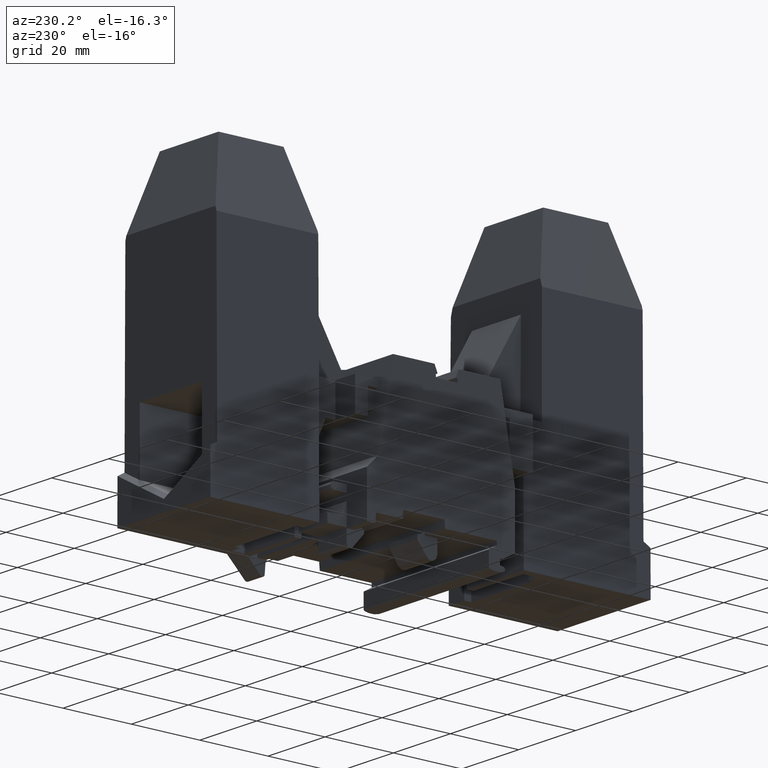
[diagram: clean part render]
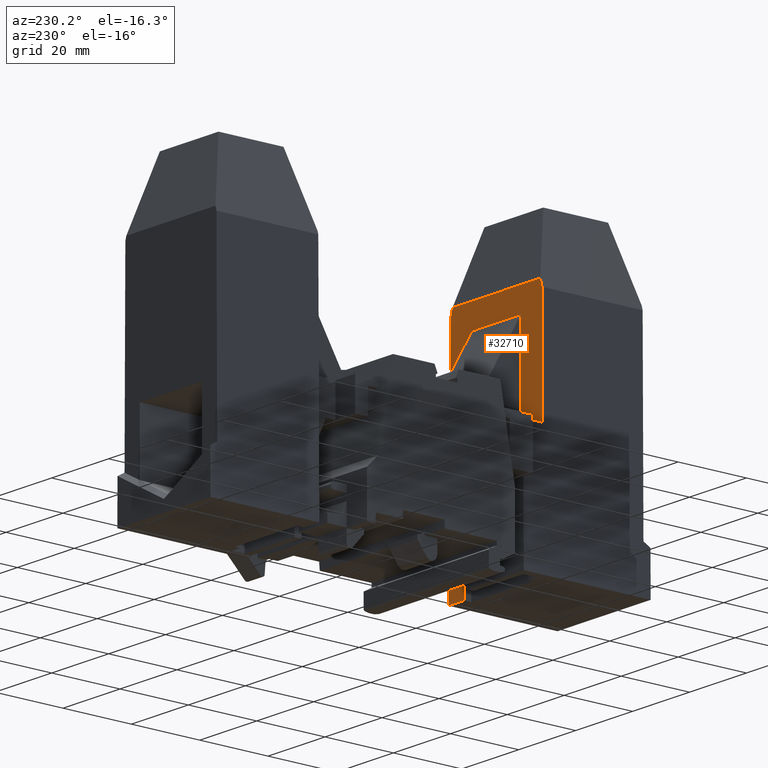
[diagram: same view with one face highlighted and labeled with its STEP entity id]
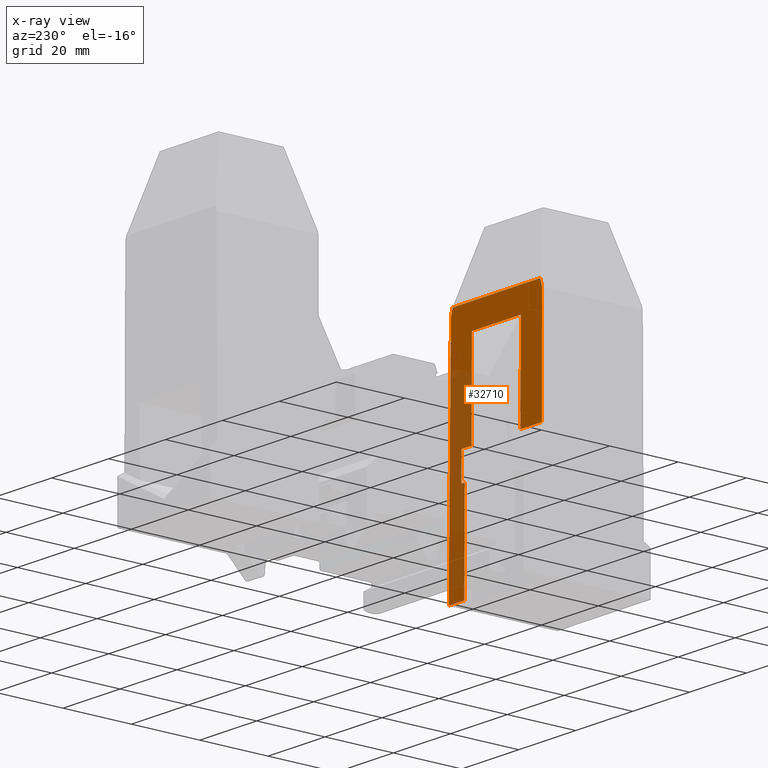
[diagram: x-ray of the same camera — body ghosted, the highlighted face saturated]
A machine part, auxiliary view. The second image highlights one B-rep face of the part: STEP entity #32710.
The next image is the same camera in x-ray: the body ghosted, the highlighted face saturated — about 37% of this face is hidden behind the body in this view.
In plain terms, the highlighted face is a freeform B-spline surface patch.
Its self-contained STEP definition (entity closure, byte-faithful):
#12900=CARTESIAN_POINT('',(-115.298364987051,435.038955563671,
12.3810540204136));
#12910=DIRECTION('',(6.7169021754704E-17,1.,1.20370621524202E-35));
#12920=DIRECTION('',(1.,-6.7169021754704E-17,-8.25143738856741E-40));
#12930=AXIS2_PLACEMENT_3D('',#12900,#12910,#12920);
#12940=PLANE('',#12930);
#13310=CARTESIAN_POINT('',(-115.245564319149,435.038955563669,
-10.0689459795862));
#13320=VERTEX_POINT('',#13310);
#13350=CARTESIAN_POINT('',(-104.793064126343,2484.3128477958,
712.876324217447));
#13360=CARTESIAN_POINT('',(-112.084978014362,1091.67260675453,
-709.459879524685));
#13370=CARTESIAN_POINT('',(-125.599481714809,-1594.90720913272,
1804.94025607115));
#13380=CARTESIAN_POINT('',(-118.376343396556,-215.402014325989,
-1800.23857394296));
#13390=B_SPLINE_SURFACE_WITH_KNOTS('',1,1,((#13350,#13370),(#13360,
#13380)),.UNSPECIFIED.,.F.,.F.,.F.,(2,2),(2,2),(-39.7771442341803,
40.7771442341803),(-105.024768864429,106.024768864429),.UNSPECIFIED.);
#13400=CARTESIAN_POINT('',(-115.245564319071,435.03895556367,
-6.56894642371046));
#13410=CARTESIAN_POINT('',(-115.245564319077,435.03895556367,
-6.86061305336696));
#13420=CARTESIAN_POINT('',(-115.245564319084,435.038955563671,
-7.15227968302292));
#13430=CARTESIAN_POINT('',(-115.24556431909,435.038955563671,
-7.44394631267929));
#13440=CARTESIAN_POINT('',(-115.245564319097,435.038955563671,
-7.73561294233533));
#13450=CARTESIAN_POINT('',(-115.245564319103,435.03895556367,
-8.02727957199235));
#13460=CARTESIAN_POINT('',(-115.24556431911,435.03895556367,
-8.31894620164825));
#13470=CARTESIAN_POINT('',(-115.245564319116,435.03895556367,
-8.61061283130387));
#13480=CARTESIAN_POINT('',(-115.245564319123,435.038955563671,
-8.90227946096153));
#13490=CARTESIAN_POINT('',(-115.245564319129,435.038955563671,
-9.19394609061703));
#13500=CARTESIAN_POINT('',(-115.245564319136,435.038955563671,
-9.48561272027343));
#13510=CARTESIAN_POINT('',(-115.245564319143,435.038955563671,
-9.77727934992984));
#13520=CARTESIAN_POINT('',(-115.245564319149,435.038955563671,
-10.068945979586));
#13530=B_SPLINE_CURVE_WITH_KNOTS('',3,(#13400,#13410,#13420,#13430,
#13440,#13450,#13460,#13470,#13480,#13490,#13500,#13510,#13520),
.UNSPECIFIED.,.F.,.F.,(4,3,3,3,4),(0.,0.874999888968837,1.74999977793779
,2.62499966690657,3.49999955587552),.UNSPECIFIED.);
#13540=SURFACE_CURVE('',#13530,(#13390,#12940),.CURVE_3D.);
#13550=CARTESIAN_POINT('',(-115.245564319071,435.03895556367,
-6.56894642371046));
#13560=VERTEX_POINT('',#13550);
#13570=EDGE_CURVE('',#13560,#13320,#13540,.T.);
#13760=CARTESIAN_POINT('',(-120.698364987051,433.038955563671,
-10.0689459795864));
#13770=DIRECTION('',(-8.25143738855932E-40,1.20370621524202E-35,-1.));
#13780=DIRECTION('',(-1.,6.7169021754704E-17,8.25143738856741E-40));
#13790=AXIS2_PLACEMENT_3D('',#13760,#13770,#13780);
#13800=PLANE('',#13790);
#14090=CARTESIAN_POINT('',(-115.286306181023,426.93895556367,
-10.0689459795404));
#14100=VERTEX_POINT('',#14090);
#14130=CARTESIAN_POINT('',(-115.286306181023,426.93895556367,
-10.0689459795864));
#14140=CARTESIAN_POINT('',(-115.282911024176,427.613955563662,
-10.0689459795864));
#14150=CARTESIAN_POINT('',(-115.27951586775,428.288955563655,
-10.0689459795864));
#14160=CARTESIAN_POINT('',(-115.276120711747,428.963955563651,
-10.0689459795864));
#14170=CARTESIAN_POINT('',(-115.272725555743,429.638955563647,
-10.0689459795864));
#14180=CARTESIAN_POINT('',(-115.269330400163,430.313955563644,
-10.0689459795864));
#14190=CARTESIAN_POINT('',(-115.265935245005,430.988955563645,
-10.0689459795864));
#14200=CARTESIAN_POINT('',(-115.262540089848,431.663955563644,
-10.0689459795864));
#14210=CARTESIAN_POINT('',(-115.259144935114,432.338955563647,
-10.0689459795864));
#14220=CARTESIAN_POINT('',(-115.255749780805,433.013955563651,
-10.0689459795864));
#14230=CARTESIAN_POINT('',(-115.252354626495,433.688955563655,
-10.0689459795864));
#14240=CARTESIAN_POINT('',(-115.248959472609,434.363955563661,
-10.0689459795863));
#14250=CARTESIAN_POINT('',(-115.245564319149,435.03895556367,
-10.0689459795863));
#14260=B_SPLINE_CURVE_WITH_KNOTS('',3,(#14130,#14140,#14150,#14160,
#14170,#14180,#14190,#14200,#14210,#14220,#14230,#14240,#14250),
.UNSPECIFIED.,.F.,.F.,(4,3,3,3,4),(0.,2.02502561556787,4.05005123113577,
6.07507684670357,8.10010246227148),.UNSPECIFIED.);
#14270=SURFACE_CURVE('',#14260,(#13800,#13390),.CURVE_3D.);
#14280=EDGE_CURVE('',#14100,#13320,#14270,.T.);
#14970=CARTESIAN_POINT('',(-203.945243361762,399.276938378274,
-12.7768886267056));
#14980=DIRECTION('',(1.16578705234462E-17,-1.,1.16578705234462E-17));
#14990=DIRECTION('',(-1.,-1.16578705234462E-17,-1.20370621524202E-35));
#15000=AXIS2_PLACEMENT_3D('',#14970,#14980,#14990);
#15010=PLANE('',#15000);
#15160=CARTESIAN_POINT('',(-115.425429708724,399.276938378274,
-14.350146805803));
#15170=VERTEX_POINT('',#15160);
#15200=CARTESIAN_POINT('',(-115.425429708724,399.276938378274,
-14.3501468058029));
#15210=CARTESIAN_POINT('',(-115.425431074235,399.276938378274,
-13.8954634036184));
#15220=CARTESIAN_POINT('',(-115.425432438997,399.276938378274,
-13.4407800014333));
#15230=CARTESIAN_POINT('',(-115.425433803012,399.276938378274,
-12.9860965992488));
#15240=CARTESIAN_POINT('',(-115.425435167027,399.276938378274,
-12.5314131970642));
#15250=CARTESIAN_POINT('',(-115.425436530294,399.276938378274,
-12.0767297948793));
#15260=CARTESIAN_POINT('',(-115.425437892816,399.276938378274,
-11.6220463926946));
#15270=CARTESIAN_POINT('',(-115.425439255337,399.276938378274,
-11.1673629905101));
#15280=CARTESIAN_POINT('',(-115.425440617112,399.276938378274,
-10.7126795883253));
#15290=CARTESIAN_POINT('',(-115.425441978142,399.276938378274,
-10.2579961861407));
#15300=CARTESIAN_POINT('',(-115.425442658657,399.276938378274,
-10.030654485048));
#15310=CARTESIAN_POINT('',(-115.425443338986,399.276938378274,
-9.80331278395606));
#15320=CARTESIAN_POINT('',(-115.425444019128,399.276938378274,
-9.57597108286365));
#15330=CARTESIAN_POINT('',(-115.425444699271,399.276938378274,
-9.34862938177106));
#15340=CARTESIAN_POINT('',(-115.425445379227,399.276938378274,
-9.12128768067899));
#15350=CARTESIAN_POINT('',(-115.425446058998,399.276938378274,
-8.89394597958653));
#15360=B_SPLINE_CURVE_WITH_KNOTS('',3,(#15200,#15210,#15220,#15230,
#15240,#15250,#15260,#15270,#15280,#15290,#15300,#15310,#15320,#15330,
#15340,#15350),.UNSPECIFIED.,.F.,.F.,(4,3,3,3,3,4),(0.,1.36405020656023,
2.72810041312057,4.09215061968056,4.77417572296067,5.45620082624083),
.UNSPECIFIED.);
#15370=SURFACE_CURVE('',#15360,(#15010,#13390),.CURVE_3D.);
#15380=CARTESIAN_POINT('',(-115.425446058998,399.276938378274,
-8.89394597958638));
#15390=VERTEX_POINT('',#15380);
#15400=EDGE_CURVE('',#15170,#15390,#15370,.T.);
#16440=CARTESIAN_POINT('',(-87.5983649870505,405.288955563671,
-8.89394597958638));
#16450=DIRECTION('',(8.25143738855932E-40,-1.20370621524202E-35,1.));
#16460=DIRECTION('',(6.7169021754704E-17,1.,1.20370621524202E-35));
#16470=AXIS2_PLACEMENT_3D('',#16440,#16450,#16460);
#16480=PLANE('',#16470);
#16660=CARTESIAN_POINT('',(-115.286306984336,426.93895556367,
-8.8939459795864));
#16670=CARTESIAN_POINT('',(-115.297901889768,424.633787464799,
-8.8939459795864));
#16680=CARTESIAN_POINT('',(-115.309496799603,422.328619365951,
-8.89394597958634));
#16690=CARTESIAN_POINT('',(-115.321091713813,420.023451267124,
-8.89394597958634));
#16700=CARTESIAN_POINT('',(-115.332686628022,417.718283168297,
-8.89394597958634));
#16710=CARTESIAN_POINT('',(-115.344281546605,415.413115069493,
-8.8939459795864));
#16720=CARTESIAN_POINT('',(-115.355876469532,413.10794697071,
-8.8939459795864));
#16730=CARTESIAN_POINT('',(-115.36747139246,410.802778871927,
-8.8939459795864));
#16740=CARTESIAN_POINT('',(-115.379066319731,408.497610773166,
-8.89394597958634));
#16750=CARTESIAN_POINT('',(-115.390661251319,406.192442674427,
-8.89394597958634));
#16760=CARTESIAN_POINT('',(-115.396458717112,405.039858625057,
-8.89394597958634));
#16770=CARTESIAN_POINT('',(-115.402256183985,403.887274575693,
-8.8939459795864));
#16780=CARTESIAN_POINT('',(-115.408053651933,402.734690526334,
-8.8939459795864));
#16790=CARTESIAN_POINT('',(-115.41385111988,401.582106476975,
-8.8939459795864));
#16800=CARTESIAN_POINT('',(-115.419648588903,400.429522427622,
-8.89394597958646));
#16810=CARTESIAN_POINT('',(-115.425446058998,399.276938378274,
-8.89394597958646));
#16820=B_SPLINE_CURVE_WITH_KNOTS('',3,(#16660,#16670,#16680,#16690,
#16700,#16710,#16720,#16730,#16740,#16750,#16760,#16770,#16780,#16790,
#16800,#16810),.UNSPECIFIED.,.F.,.F.,(4,3,3,3,3,4),(0.,6.91559177894087,
13.8311835578819,20.7467753368227,24.204571226293,27.6623671157636),
.UNSPECIFIED.);
#16830=SURFACE_CURVE('',#16820,(#13390,#16480),.CURVE_3D.);
#16840=CARTESIAN_POINT('',(-115.286306984336,426.938955563671,
-8.89394597958638));
#16850=VERTEX_POINT('',#16840);
#16860=EDGE_CURVE('',#16850,#15390,#16830,.T.);
#24410=CARTESIAN_POINT('',(-118.698364987051,426.938955563671,
-10.0689459795864));
#24420=DIRECTION('',(-6.7169021754704E-17,-1.,-1.20370621524202E-35));
#24430=DIRECTION('',(8.25143738855932E-40,-1.20370621524202E-35,1.));
#24440=AXIS2_PLACEMENT_3D('',#24410,#24420,#24430);
#24450=PLANE('',#24440);
#24490=CARTESIAN_POINT('',(-115.286306984336,426.938955563671,
-8.89394597957255));
#24500=CARTESIAN_POINT('',(-115.286306917425,426.938955563671,
-8.9918626462374));
#24510=CARTESIAN_POINT('',(-115.286306850507,426.938955563671,
-9.08977931290168));
#24520=CARTESIAN_POINT('',(-115.28630678358,426.938955563671,
-9.1876959795669));
#24530=CARTESIAN_POINT('',(-115.286306716653,426.938955563671,
-9.2856126462312));
#24540=CARTESIAN_POINT('',(-115.286306649719,426.93895556367,
-9.38352931289654));
#24550=CARTESIAN_POINT('',(-115.286306582776,426.93895556367,
-9.48144597956079));
#24560=CARTESIAN_POINT('',(-115.286306515833,426.93895556367,
-9.57936264622584));
#24570=CARTESIAN_POINT('',(-115.286306448882,426.93895556367,
-9.67727931289056));
#24580=CARTESIAN_POINT('',(-115.286306381924,426.93895556367,
-9.77519597955525));
#24590=CARTESIAN_POINT('',(-115.286306314965,426.93895556367,
-9.87311264622011));
#24600=CARTESIAN_POINT('',(-115.286306247998,426.93895556367,
-9.97102931288464));
#24610=CARTESIAN_POINT('',(-115.286306181023,426.93895556367,
-10.0689459795494));
#24620=B_SPLINE_CURVE_WITH_KNOTS('',3,(#24490,#24500,#24510,#24520,
#24530,#24540,#24550,#24560,#24570,#24580,#24590,#24600,#24610),
.UNSPECIFIED.,.F.,.F.,(4,3,3,3,4),(0.,0.293749999994416,
0.587499999988376,0.881249999982906,1.17499999997715),.UNSPECIFIED.);
#24630=SURFACE_CURVE('',#24620,(#24450,#13390),.CURVE_3D.);
#24640=EDGE_CURVE('',#16850,#14100,#24630,.T.);
#30190=CARTESIAN_POINT('',(-118.649658255379,449.966558136016,
-6.56894642371042));
#30200=DIRECTION('',(8.25143738855932E-40,-1.20370621524202E-35,1.));
#30210=DIRECTION('',(1.,-6.7169021754704E-17,-8.25143738856741E-40));
#30220=AXIS2_PLACEMENT_3D('',#30190,#30200,#30210);
#30230=PLANE('',#30220);
#30250=CARTESIAN_POINT('',(-115.110273216917,461.935008451775,
-6.56894642371045));
#30260=CARTESIAN_POINT('',(-115.121547462287,459.693670711033,
-6.56894642371045));
#30270=CARTESIAN_POINT('',(-115.132821710971,457.452332970308,
-6.5689464237104));
#30280=CARTESIAN_POINT('',(-115.144095962948,455.2109952296,
-6.5689464237104));
#30290=CARTESIAN_POINT('',(-115.155370214925,452.969657488892,
-6.5689464237104));
#30300=CARTESIAN_POINT('',(-115.166644470195,450.7283197482,
-6.56894642371051));
#30310=CARTESIAN_POINT('',(-115.177918728736,448.486982007525,
-6.56894642371051));
#30320=CARTESIAN_POINT('',(-115.189192987278,446.24564426685,
-6.56894642371051));
#30330=CARTESIAN_POINT('',(-115.200467249091,444.004306526191,
-6.56894642371028));
#30340=CARTESIAN_POINT('',(-115.211741514154,441.762968785549,
-6.56894642371028));
#30350=CARTESIAN_POINT('',(-115.223015779216,439.521631044906,
-6.56894642371028));
#30360=CARTESIAN_POINT('',(-115.234290047529,437.280293304281,
-6.5689464237104));
#30370=CARTESIAN_POINT('',(-115.245564319071,435.038955563671,
-6.5689464237104));
#30380=B_SPLINE_CURVE_WITH_KNOTS('',3,(#30250,#30260,#30270,#30280,
#30290,#30300,#30310,#30320,#30330,#30340,#30350,#30360,#30370),
.UNSPECIFIED.,.F.,.F.,(4,3,3,3,4),(0.,6.72409828825589,13.4481965765117,
20.1722948647677,26.8963931530235),.UNSPECIFIED.);
#30390=SURFACE_CURVE('',#30380,(#13390,#30230),.CURVE_3D.);
#30400=CARTESIAN_POINT('',(-115.110273216917,461.93500845177,
-6.56894642370659));
#30410=VERTEX_POINT('',#30400);
#30420=EDGE_CURVE('',#30410,#13560,#30390,.T.);
#30690=CARTESIAN_POINT('',(-178.923092165796,412.466705279512,
18.2796089269697));
#30700=DIRECTION('',(6.1040188412137E-20,-0.00523596383141961,
-0.999986292247427));
#30710=DIRECTION('',(-1.,-1.16578705234462E-17,-1.20370621524202E-35));
#30720=AXIS2_PLACEMENT_3D('',#30690,#30700,#30710);
#30730=PLANE('',#30720);
#30740=CARTESIAN_POINT('',(-115.085737176134,466.799715768666,
17.9951193494835));
#30750=CARTESIAN_POINT('',(-115.099056105783,464.152985751589,
18.0089777220916));
#30760=CARTESIAN_POINT('',(-115.11237503515,461.50625573451,
18.0228360946998));
#30770=CARTESIAN_POINT('',(-115.125693964237,458.85952571743,
18.0366944673079));
#30780=CARTESIAN_POINT('',(-115.139012893324,456.212795700349,
18.050552839916));
#30790=CARTESIAN_POINT('',(-115.152331822131,453.566065683268,
18.0644112125241));
#30800=CARTESIAN_POINT('',(-115.16565075066,450.919335666185,
18.0782695851322));
#30810=CARTESIAN_POINT('',(-115.17896967919,448.272605649102,
18.0921279577403));
#30820=CARTESIAN_POINT('',(-115.192288607442,445.625875632017,
18.1059863303485));
#30830=CARTESIAN_POINT('',(-115.205607535418,442.979145614932,
18.1198447029566));
#30840=CARTESIAN_POINT('',(-115.218926463394,440.332415597846,
18.1337030755647));
#30850=CARTESIAN_POINT('',(-115.232245391095,437.685685580759,
18.1475614481729));
#30860=CARTESIAN_POINT('',(-115.245564318522,435.038955563671,
18.161419820781));
#30870=B_SPLINE_CURVE_WITH_KNOTS('',3,(#30740,#30750,#30760,#30770,
#30780,#30790,#30800,#30810,#30820,#30830,#30840,#30850,#30860),
.UNSPECIFIED.,.F.,.F.,(4,3,3,3,4),(0.,7.94039942856074,15.8807988571217,
23.8211982856823,31.7615977142432),.UNSPECIFIED.);
#30880=SURFACE_CURVE('',#30870,(#30730,#13390),.CURVE_3D.);
#30890=CARTESIAN_POINT('',(-115.085737176134,466.799715768666,
17.9951193494836));
#30900=VERTEX_POINT('',#30890);
#30910=CARTESIAN_POINT('',(-115.245564318522,435.038955563671,
18.161419820781));
#30920=VERTEX_POINT('',#30910);
#30930=EDGE_CURVE('',#30900,#30920,#30880,.T.);
#30940=ORIENTED_EDGE('',*,*,#30930,.F.);
#30950=CARTESIAN_POINT('',(-115.245564318522,435.038955563671,
18.1614198207763));
#30960=CARTESIAN_POINT('',(-115.245564318529,435.038955563671,
17.8476545605985));
#30970=CARTESIAN_POINT('',(-115.245564318535,435.03895556367,
17.533889300405));
#30980=CARTESIAN_POINT('',(-115.245564318542,435.03895556367,
17.2201240402197));
#30990=CARTESIAN_POINT('',(-115.245564318549,435.03895556367,
16.9063587800322));
#31000=CARTESIAN_POINT('',(-115.245564318556,435.038955563671,
16.5925935198455));
#31010=CARTESIAN_POINT('',(-115.245564318563,435.038955563671,
16.2788282596582));
#31020=CARTESIAN_POINT('',(-115.245564318577,435.038955563671,
15.6512977392838));
#31030=CARTESIAN_POINT('',(-115.245564318591,435.038955563671,
15.02376721891));
#31040=CARTESIAN_POINT('',(-115.245564318604,435.038955563671,
14.3962366985352));
#31050=CARTESIAN_POINT('',(-115.245564318618,435.038955563671,
13.7687061781609));
#31060=CARTESIAN_POINT('',(-115.245564318632,435.038955563671,
13.1411756577872));
#31070=CARTESIAN_POINT('',(-115.245564318646,435.038955563671,
12.5136451374124));
#31080=CARTESIAN_POINT('',(-115.245564318653,435.038955563671,
12.1998798772253));
#31090=CARTESIAN_POINT('',(-115.24556431866,435.03895556367,
11.886114617038));
#31100=CARTESIAN_POINT('',(-115.245564318667,435.03895556367,
11.5723493568509));
#31110=CARTESIAN_POINT('',(-115.245564318674,435.03895556367,
11.258584096664));
#31120=CARTESIAN_POINT('',(-115.245564318681,435.038955563671,
10.9448188364768));
#31130=CARTESIAN_POINT('',(-115.245564318688,435.038955563671,
10.6310535762897));
#31140=B_SPLINE_CURVE_WITH_KNOTS('',3,(#30950,#30960,#30970,#30980,
#30990,#31000,#31010,#31020,#31030,#31040,#31050,#31060,#31070,#31080,
#31090,#31100,#31110,#31120,#31130),.UNSPECIFIED.,.F.,.F.,(4,3,3,3,3,3,4
),(0.,0.941295780556583,1.88259156111806,3.76518312224106,
5.64777468336384,6.58907046392532,7.53036624448657),.UNSPECIFIED.);
#31150=SURFACE_CURVE('',#31140,(#13390,#12940),.CURVE_3D.);
#31160=CARTESIAN_POINT('',(-115.245564318688,435.038955563671,
10.6310535762897));
#31170=VERTEX_POINT('',#31160);
#31180=EDGE_CURVE('',#30920,#31170,#31150,.T.);
#31190=ORIENTED_EDGE('',*,*,#31180,.F.);
#31200=CARTESIAN_POINT('',(-379.379250092403,187.522345280942,
10.6310535762896));
#31210=DIRECTION('',(8.25143738855932E-40,-1.20370621524202E-35,1.));
#31220=DIRECTION('',(1.,-6.7169021754704E-17,-8.25143738856741E-40));
#31230=AXIS2_PLACEMENT_3D('',#31200,#31210,#31220);
#31240=PLANE('',#31230);
#31250=CARTESIAN_POINT('',(-115.110233750223,461.935076810192,
10.6310535762897));
#31260=CARTESIAN_POINT('',(-115.121511312888,459.693733373059,
10.6310535762897));
#31270=CARTESIAN_POINT('',(-115.132788871696,457.452389935905,
10.6310535762895));
#31280=CARTESIAN_POINT('',(-115.144066426673,455.211046498734,
10.6310535762895));
#31290=CARTESIAN_POINT('',(-115.155343981651,452.969703061562,
10.6310535762895));
#31300=CARTESIAN_POINT('',(-115.166621532797,450.728359624372,
10.6310535762896));
#31310=CARTESIAN_POINT('',(-115.177899080136,448.487016187161,
10.6310535762896));
#31320=CARTESIAN_POINT('',(-115.189176627475,446.245672749951,
10.6310535762896));
#31330=CARTESIAN_POINT('',(-115.200454171008,444.004329312721,
10.6310535762896));
#31340=CARTESIAN_POINT('',(-115.211731710758,441.762985875472,
10.6310535762896));
#31350=CARTESIAN_POINT('',(-115.217370480634,440.642314156848,
10.6310535762896));
#31360=CARTESIAN_POINT('',(-115.223009249563,439.52164243822,
10.6310535762894));
#31370=CARTESIAN_POINT('',(-115.228648017551,438.400970719586,
10.6310535762894));
#31380=CARTESIAN_POINT('',(-115.234286785538,437.280299000952,
10.6310535762894));
#31390=CARTESIAN_POINT('',(-115.239925552582,436.159627282313,
10.6310535762896));
#31400=CARTESIAN_POINT('',(-115.245564318688,435.03895556367,
10.6310535762896));
#31410=B_SPLINE_CURVE_WITH_KNOTS('',3,(#31250,#31260,#31270,#31280,
#31290,#31300,#31310,#31320,#31330,#31340,#31350,#31360,#31370,#31380,
#31390,#31400),.UNSPECIFIED.,.F.,.F.,(4,3,3,3,3,4),(0.,6.72411542728082,
13.4482308545616,20.1723462818426,23.5344039954827,26.8964617091231),
.UNSPECIFIED.);
#31420=SURFACE_CURVE('',#31410,(#31240,#13390),.CURVE_3D.);
#31430=CARTESIAN_POINT('',(-115.110233750223,461.935076810201,
10.6310535762821));
#31440=VERTEX_POINT('',#31430);
#31450=EDGE_CURVE('',#31440,#31170,#31420,.T.);
#31460=ORIENTED_EDGE('',*,*,#31450,.T.);
#31470=CARTESIAN_POINT('',(-128.765214968502,438.283955563671,
-5.01894642371042));
#31480=DIRECTION('',(0.866025403784438,-0.500000000000001,
-6.01924567164975E-36));
#31490=DIRECTION('',(-0.500000000000001,-0.866025403784438,
-1.04239890390587E-35));
#31500=AXIS2_PLACEMENT_3D('',#31470,#31480,#31490);
#31510=PLANE('',#31500);
#31520=CARTESIAN_POINT('',(-115.110233750224,461.935076810127,
10.6310535762825));
#31530=CARTESIAN_POINT('',(-115.110237015686,461.93507115418,
9.19772024294998));
#31540=CARTESIAN_POINT('',(-115.110240286964,461.935065488161,
7.76438690961697));
#31550=CARTESIAN_POINT('',(-115.110243564088,461.935059812015,
6.33105357628468));
#31560=CARTESIAN_POINT('',(-115.110246841212,461.93505413587,
4.8977202429527));
#31570=CARTESIAN_POINT('',(-115.110250124183,461.935048449598,
3.46438690961916));
#31580=CARTESIAN_POINT('',(-115.110253413031,461.935042753145,
2.0310535762874));
#31590=CARTESIAN_POINT('',(-115.11025670188,461.935037056692,
0.597720242955114));
#31600=CARTESIAN_POINT('',(-115.110259996607,461.935031350057,
-0.835613090377482));
#31610=CARTESIAN_POINT('',(-115.110263297244,461.935025633186,
-2.26894642370978));
#31620=CARTESIAN_POINT('',(-115.110266597881,461.935019916315,
-3.70227975704216));
#31630=CARTESIAN_POINT('',(-115.110269904428,461.935014189208,
-5.13561309037434));
#31640=CARTESIAN_POINT('',(-115.110273216917,461.935008451808,
-6.56894642370662));
#31650=B_SPLINE_CURVE_WITH_KNOTS('',3,(#31520,#31530,#31540,#31550,
#31560,#31570,#31580,#31590,#31600,#31610,#31620,#31630,#31640),
.UNSPECIFIED.,.F.,.F.,(4,3,3,3,4),(0.,4.30000000004263,8.60000000008503,
12.9000000001276,17.2000000001703),.UNSPECIFIED.);
#31660=SURFACE_CURVE('',#31650,(#13390,#31510),.CURVE_3D.);
#31670=EDGE_CURVE('',#31440,#30410,#31660,.T.);
#31680=ORIENTED_EDGE('',*,*,#31670,.F.);
#31690=ORIENTED_EDGE('',*,*,#30420,.F.);
#31700=ORIENTED_EDGE('',*,*,#13570,.F.);
#31710=ORIENTED_EDGE('',*,*,#14280,.T.);
#31720=ORIENTED_EDGE('',*,*,#24640,.T.);
#31730=ORIENTED_EDGE('',*,*,#16860,.F.);
#31740=ORIENTED_EDGE('',*,*,#15400,.T.);
#31750=CARTESIAN_POINT('',(-192.565572863859,412.463773926208,
-14.2811000653475));
#31760=DIRECTION('',(6.10401884121367E-20,-0.00523596383141959,
0.999986292247427));
#31770=DIRECTION('',(1.,1.16578705234462E-17,1.20370621524202E-35));
#31780=AXIS2_PLACEMENT_3D('',#31750,#31760,#31770);
#31790=PLANE('',#31780);
#31800=CARTESIAN_POINT('',(-115.425429708724,399.276938378274,
-14.3501468058029));
#31810=CARTESIAN_POINT('',(-115.397128358722,404.903999292603,
-14.3206833145001));
#31820=CARTESIAN_POINT('',(-115.368827006922,410.531060206923,
-14.2912198231975));
#31830=CARTESIAN_POINT('',(-115.340525653293,416.158121121234,
-14.2617563318947));
#31840=CARTESIAN_POINT('',(-115.312224299664,421.785182035545,
-14.2322928405919));
#31850=CARTESIAN_POINT('',(-115.283922944207,427.412242949847,
-14.2028293492891));
#31860=CARTESIAN_POINT('',(-115.255621586891,433.039303864139,
-14.1733658579864));
#31870=CARTESIAN_POINT('',(-115.227320229575,438.666364778431,
-14.1439023666837));
#31880=CARTESIAN_POINT('',(-115.1990188704,444.293425692714,
-14.114438875381));
#31890=CARTESIAN_POINT('',(-115.170717509336,449.920486606988,
-14.0849753840784));
#31900=CARTESIAN_POINT('',(-115.142416148271,455.547547521261,
-14.0555118927758));
#31910=CARTESIAN_POINT('',(-115.114114785317,461.174608435525,
-14.0260484014732));
#31920=CARTESIAN_POINT('',(-115.085813420442,466.801669349779,
-13.9965849101708));
#31930=B_SPLINE_CURVE_WITH_KNOTS('',3,(#31800,#31810,#31820,#31830,
#31840,#31850,#31860,#31870,#31880,#31890,#31900,#31910,#31920),
.UNSPECIFIED.,.F.,.F.,(4,3,3,3,4),(0.,16.8816276577738,33.7632553155478,
50.6448829733217,67.5265106310955),.UNSPECIFIED.);
#31940=SURFACE_CURVE('',#31930,(#13390,#31790),.CURVE_3D.);
#31950=CARTESIAN_POINT('',(-115.085813420442,466.801669349769,
-13.9965849101709));
#31960=VERTEX_POINT('',#31950);
#31970=EDGE_CURVE('',#15170,#31960,#31940,.T.);
#31980=ORIENTED_EDGE('',*,*,#31970,.F.);
#31990=CARTESIAN_POINT('',(-183.575679399509,473.793871536226,
-12.0837348489844));
#32000=DIRECTION('',(-3.07619785112316E-18,0.263873049965373,
-0.964557418457798));
#32010=DIRECTION('',(-1.12446854968105E-17,0.964557418457798,
0.263873049965373));
#32020=AXIS2_PLACEMENT_3D('',#31990,#32000,#32010);
#32030=PLANE('',#32020);
#32040=CARTESIAN_POINT('',(-115.074983298502,468.954649826479,
-13.4075961013825));
#32050=CARTESIAN_POINT('',(-115.075885817639,468.775234786796,
-13.4566785021031));
#32060=CARTESIAN_POINT('',(-115.07678833453,468.595819747103,
-13.5057609028266));
#32070=CARTESIAN_POINT('',(-115.077690849178,468.416404707399,
-13.5548433035531));
#32080=CARTESIAN_POINT('',(-115.078593363826,468.236989667695,
-13.6039257042795));
#32090=CARTESIAN_POINT('',(-115.07949587623,468.057574627981,
-13.6530081050085));
#32100=CARTESIAN_POINT('',(-115.080398386391,467.878159588255,
-13.7020905057407));
#32110=CARTESIAN_POINT('',(-115.081300896551,467.698744548531,
-13.7511729064727));
#32120=CARTESIAN_POINT('',(-115.082203404469,467.519329508795,
-13.8002553072082));
#32130=CARTESIAN_POINT('',(-115.083105910143,467.339914469049,
-13.849337707946));
#32140=CARTESIAN_POINT('',(-115.084008415818,467.160499429303,
-13.898420108684));
#32150=CARTESIAN_POINT('',(-115.084910919251,466.981084389547,
-13.9475025094243));
#32160=CARTESIAN_POINT('',(-115.085813420442,466.801669349779,
-13.996584910168));
#32170=B_SPLINE_CURVE_WITH_KNOTS('',3,(#32040,#32050,#32060,#32070,
#32080,#32090,#32100,#32110,#32120,#32130,#32140,#32150,#32160),
.UNSPECIFIED.,.F.,.F.,(4,3,3,3,4),(0.,0.558029459429929,1.11605891886004
,1.67408837829006,2.23211783771999),.UNSPECIFIED.);
#32180=SURFACE_CURVE('',#32170,(#32030,#13390),.CURVE_3D.);
#32190=CARTESIAN_POINT('',(-115.074983298502,468.954649826479,
-13.4075961013825));
#32200=VERTEX_POINT('',#32190);
#32210=EDGE_CURVE('',#32200,#31960,#32180,.T.);
#32220=ORIENTED_EDGE('',*,*,#32210,.T.);
#32230=CARTESIAN_POINT('',(-113.716925915718,473.918871536226,
-0.749000000000009));
#32240=DIRECTION('',(-0.964557418457798,0.263873049965373,0.));
#32250=DIRECTION('',(0.263873049965373,0.964557418457798,
3.20265729800347E-16));
#32260=AXIS2_PLACEMENT_3D('',#32230,#32240,#32250);
#32270=PLANE('',#32260);
#32280=CARTESIAN_POINT('',(-115.074983298502,468.954649826477,
-13.4075961013824));
#32290=CARTESIAN_POINT('',(-115.074975680708,468.954677672443,
-10.8398376049296));
#32300=CARTESIAN_POINT('',(-115.07496808757,468.954705428278,
-8.27207910847618));
#32310=CARTESIAN_POINT('',(-115.074960518849,468.954733094863,
-5.70432061202119));
#32320=CARTESIAN_POINT('',(-115.074952950128,468.954760761448,
-3.13656211556681));
#32330=CARTESIAN_POINT('',(-115.074945405823,468.954788338783,
-0.568803619110936));
#32340=CARTESIAN_POINT('',(-115.074937885697,468.954815827734,
1.99895487734552));
#32350=CARTESIAN_POINT('',(-115.074930365571,468.954843316685,
4.56671337380222));
#32360=CARTESIAN_POINT('',(-115.074922869624,468.954870717252,
7.13447187025992));
#32370=CARTESIAN_POINT('',(-115.074915397622,468.954898030293,
9.7022303667192));
#32380=CARTESIAN_POINT('',(-115.074907925619,468.954925343334,
12.2699888631772));
#32390=CARTESIAN_POINT('',(-115.074900477561,468.954952568848,
14.8377473596377));
#32400=CARTESIAN_POINT('',(-115.074893053217,468.95497970768,
17.405505856098));
#32410=B_SPLINE_CURVE_WITH_KNOTS('',3,(#32280,#32290,#32300,#32310,
#32320,#32330,#32340,#32350,#32360,#32370,#32380,#32390,#32400),
.UNSPECIFIED.,.F.,.F.,(4,3,3,3,4),(0.,7.70327548984494,15.4065509796892,
23.1098264695343,30.8131019593785),.UNSPECIFIED.);
#32420=SURFACE_CURVE('',#32410,(#32270,#13390),.CURVE_3D.);
#32430=CARTESIAN_POINT('',(-115.074893053217,468.954979707681,
17.4055058560977));
#32440=VERTEX_POINT('',#32430);
#32450=EDGE_CURVE('',#32200,#32440,#32420,.T.);
#32460=ORIENTED_EDGE('',*,*,#32450,.F.);
#32470=CARTESIAN_POINT('',(-188.575679399509,473.793871536226,
16.0817348489841));
#32480=DIRECTION('',(-3.07619785112316E-18,0.263873049965373,
0.964557418457798));
#32490=DIRECTION('',(-1.12446854968105E-17,0.964557418457798,
-0.263873049965373));
#32500=AXIS2_PLACEMENT_3D('',#32470,#32480,#32490);
#32510=PLANE('',#32500);
#32520=CARTESIAN_POINT('',(-115.085737176134,466.799715768666,
17.9951193494835));
#32530=CARTESIAN_POINT('',(-115.08483349042,466.979321096876,
17.9459848917127));
#32540=CARTESIAN_POINT('',(-115.083929806906,467.158926425096,
17.8968504339392));
#32550=CARTESIAN_POINT('',(-115.083026125592,467.338531753327,
17.8477159761628));
#32560=CARTESIAN_POINT('',(-115.082122444277,467.518137081557,
17.7985815183863));
#32570=CARTESIAN_POINT('',(-115.081218765164,467.697742409798,
17.7494470606066));
#32580=CARTESIAN_POINT('',(-115.080315088252,467.877347738049,
17.7003126028246));
#32590=CARTESIAN_POINT('',(-115.07941141134,468.0569530663,
17.6511781450424));
#32600=CARTESIAN_POINT('',(-115.07850773663,468.236558394562,
17.6020436872576));
#32610=CARTESIAN_POINT('',(-115.077604064124,468.416163722833,
17.5529092294699));
#32620=CARTESIAN_POINT('',(-115.076700391618,468.595769051105,
17.5037747716821));
#32630=CARTESIAN_POINT('',(-115.075796721315,468.775374379387,
17.4546403138914));
#32640=CARTESIAN_POINT('',(-115.074893053217,468.95497970768,
17.405505856098));
#32650=B_SPLINE_CURVE_WITH_KNOTS('',3,(#32520,#32530,#32540,#32550,
#32560,#32570,#32580,#32590,#32600,#32610,#32620,#32630,#32640),
.UNSPECIFIED.,.F.,.F.,(4,3,3,3,4),(0.,0.558621311432954,1.1172426228663,
1.67586393429937,2.23448524573263),.UNSPECIFIED.);
#32660=SURFACE_CURVE('',#32650,(#32510,#13390),.CURVE_3D.);
#32670=EDGE_CURVE('',#30900,#32440,#32660,.T.);
#32680=ORIENTED_EDGE('',*,*,#32670,.T.);
#32690=EDGE_LOOP('',(#32680,#32460,#32220,#31980,#31740,#31730,#31720,
#31710,#31700,#31690,#31680,#31460,#31190,#30940));
#32700=FACE_OUTER_BOUND('',#32690,.T.);
#32710=ADVANCED_FACE('',(#32700),#13390,.T.);